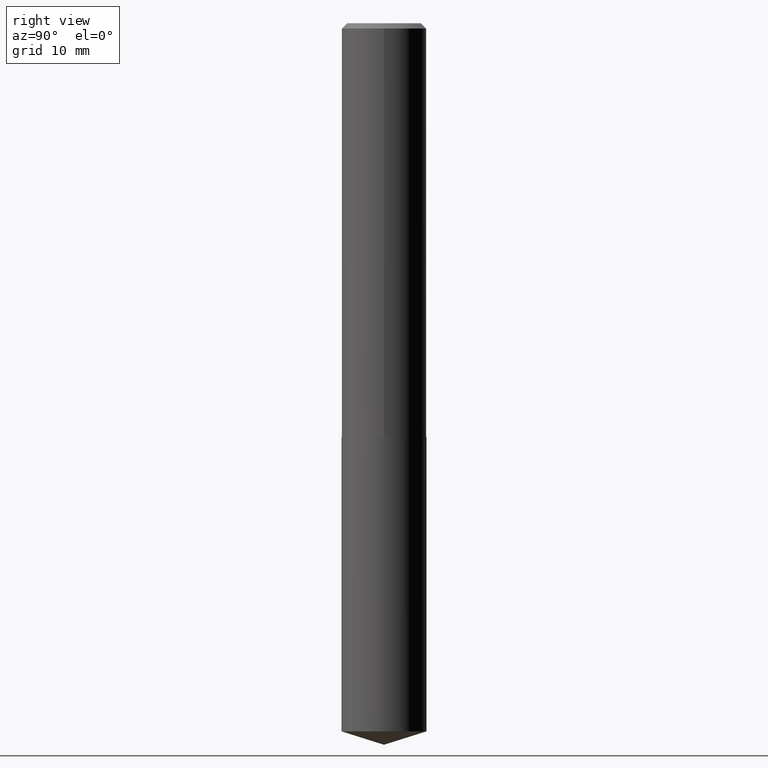
[diagram: clean part render]
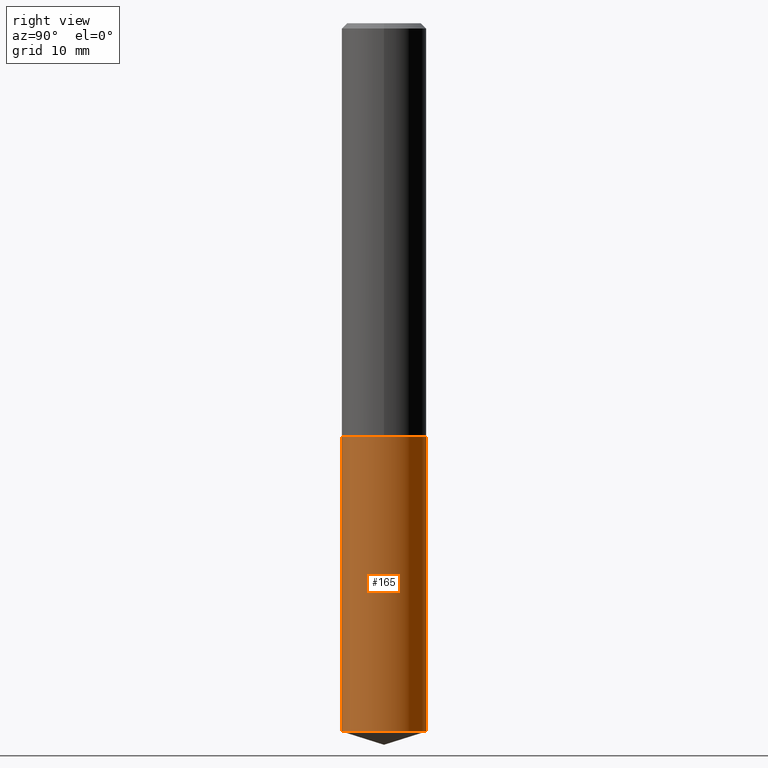
[diagram: same view with one face highlighted and labeled with its STEP entity id]
A machine part, right view. The second image highlights one B-rep face of the part: STEP entity #165.
In plain terms, the highlighted cylindrical surface (partial cylindrical patch) has radius 6.35 mm, axis along (-0, 0, 1).
Its self-contained STEP definition (entity closure, byte-faithful):
#1 = DIRECTION ( 'NONE',  ( -2.445705016429286457E-29, 3.491143072329270783E-15, 1.000000000000000000 ) ) ;
#18 = CARTESIAN_POINT ( 'NONE',  ( 1.776356839400310024E-15, 0.2499999999999915068, -2.437500000000000888 ) ) ;
#39 = CARTESIAN_POINT ( 'NONE',  ( 1.776356839400352622E-15, 0.2499999999999915068, -2.437500000000000888 ) ) ;
#57 = VERTEX_POINT ( 'NONE', #292 ) ;
#63 = CARTESIAN_POINT ( 'NONE',  ( -1.745740669421506724E-15, -0.2500000000000084932, -2.437499999999999112 ) ) ;
#70 = DIRECTION ( 'NONE',  ( -6.982962677686265922E-15, -1.000000000000000000, 3.278217592397115862E-15 ) ) ;
#73 = FACE_OUTER_BOUND ( 'NONE', #222, .T. ) ;
#75 = VERTEX_POINT ( 'NONE', #327 ) ;
#77 = CYLINDRICAL_SURFACE ( 'NONE', #265, 0.2500000000000000000 ) ;
#87 = EDGE_CURVE ( 'NONE', #75, #57, #214, .T. ) ;
#90 = EDGE_CURVE ( 'NONE', #57, #198, #273, .T. ) ;
#103 = ORIENTED_EDGE ( 'NONE', *, *, #357, .T. ) ;
#104 = LINE ( 'NONE', #18, #343 ) ;
#133 = CARTESIAN_POINT ( 'NONE',  ( 1.020088859994550091E-28, -1.456299428639980491E-14, -4.171175302780254057 ) ) ;
#136 = ORIENTED_EDGE ( 'NONE', *, *, #87, .F. ) ;
#141 = ORIENTED_EDGE ( 'NONE', *, *, #329, .T. ) ;
#154 = CIRCLE ( 'NONE', #253, 0.2500000000000000000 ) ;
#155 = AXIS2_PLACEMENT_3D ( 'NONE', #298, #1, #267 ) ;
#165 = ADVANCED_FACE ( 'NONE', ( #73 ), #77, .T. ) ;
#166 = VERTEX_POINT ( 'NONE', #173 ) ;
#173 = CARTESIAN_POINT ( 'NONE',  ( 1.776356839400351439E-15, 0.2499999999999853728, -4.171175302780255834 ) ) ;
#175 = ORIENTED_EDGE ( 'NONE', *, *, #90, .F. ) ;
#198 = VERTEX_POINT ( 'NONE', #39 ) ;
#214 = LINE ( 'NONE', #63, #319 ) ;
#216 = DIRECTION ( 'NONE',  ( -2.445705016429286457E-29, 3.491143072329270783E-15, 1.000000000000000000 ) ) ;
#222 = EDGE_LOOP ( 'NONE', ( #141, #103, #175, #136 ) ) ;
#253 = AXIS2_PLACEMENT_3D ( 'NONE', #133, #337, #372 ) ;
#265 = AXIS2_PLACEMENT_3D ( 'NONE', #367, #316, #70 ) ;
#267 = DIRECTION ( 'NONE',  ( -6.982962677686265922E-15, -1.000000000000000000, 3.278217592397115862E-15 ) ) ;
#273 = CIRCLE ( 'NONE', #155, 0.2500000000000000000 ) ;
#292 = CARTESIAN_POINT ( 'NONE',  ( -1.745740669421506724E-15, -0.2500000000000084932, -2.437499999999999556 ) ) ;
#298 = CARTESIAN_POINT ( 'NONE',  ( 5.960830215076270455E-29, -8.510485763430168319E-15, -2.437500000000000000 ) ) ;
#316 = DIRECTION ( 'NONE',  ( -2.445705016429286457E-29, 3.491143072329270783E-15, 1.000000000000000000 ) ) ;
#319 = VECTOR ( 'NONE', #331, 39.37007874015748143 ) ;
#327 = CARTESIAN_POINT ( 'NONE',  ( -1.745740669421464126E-15, -0.2500000000000144884, -4.171175302780253169 ) ) ;
#329 = EDGE_CURVE ( 'NONE', #75, #166, #154, .T. ) ;
#331 = DIRECTION ( 'NONE',  ( -2.445705016429286457E-29, 3.491143072329270783E-15, 1.000000000000000000 ) ) ;
#337 = DIRECTION ( 'NONE',  ( -2.445705016429286457E-29, 3.491143072329270783E-15, 1.000000000000000000 ) ) ;
#343 = VECTOR ( 'NONE', #216, 39.37007874015748143 ) ;
#357 = EDGE_CURVE ( 'NONE', #166, #198, #104, .T. ) ;
#367 = CARTESIAN_POINT ( 'NONE',  ( 5.960830215076270455E-29, -8.510485763430166741E-15, -2.437500000000000000 ) ) ;
#372 = DIRECTION ( 'NONE',  ( -6.982962677686265922E-15, -1.000000000000000000, 4.370956789862821150E-15 ) ) ;